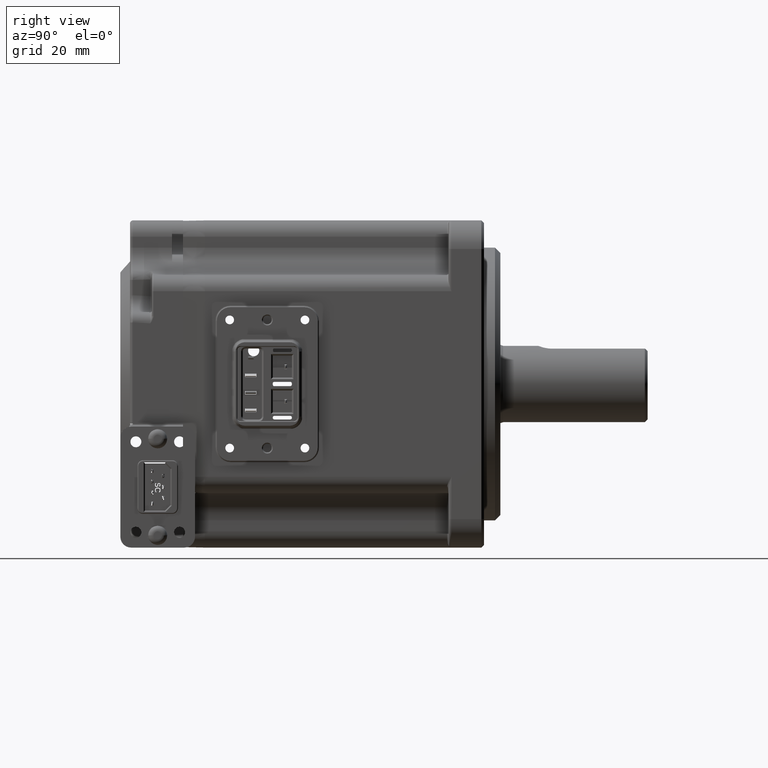
[diagram: clean part render]
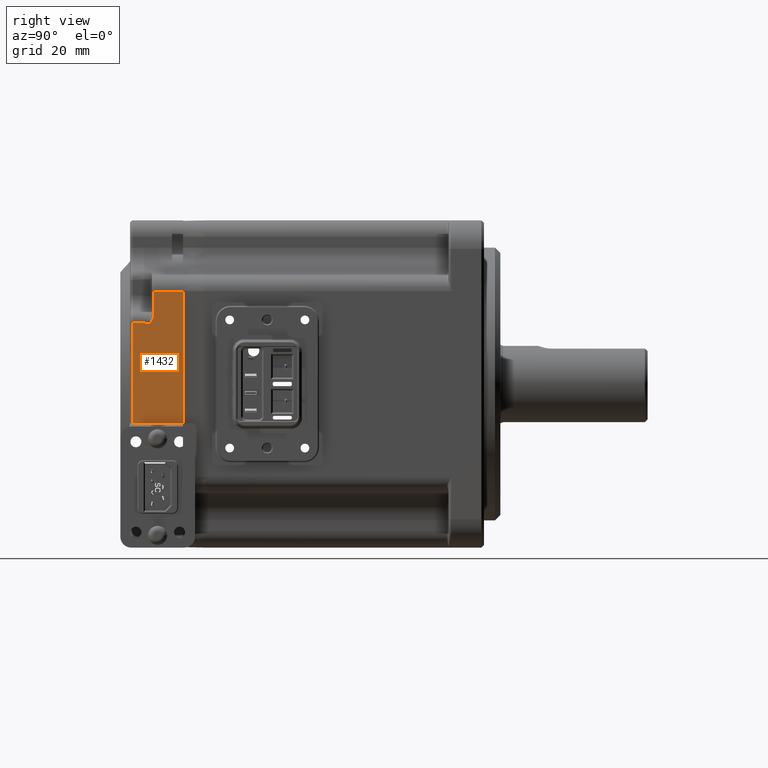
[diagram: same view with one face highlighted and labeled with its STEP entity id]
A machine part, right view. The second image highlights one B-rep face of the part: STEP entity #1432.
In plain terms, the highlighted planar face has unit normal (-1, -0, 0).
Its self-contained STEP definition (entity closure, byte-faithful):
#299 = VERTEX_POINT ( 'NONE', #12474 ) ;
#384 = DIRECTION ( 'NONE',  ( -6.076376333538275761E-17, 1.000000000000000000, 1.421175234054173029E-18 ) ) ;
#698 = VERTEX_POINT ( 'NONE', #24573 ) ;
#1412 = ORIENTED_EDGE ( 'NONE', *, *, #11119, .T. ) ;
#1432 = ADVANCED_FACE ( 'NONE', ( #11999 ), #7326, .F. ) ;
#1438 = ORIENTED_EDGE ( 'NONE', *, *, #13786, .T. ) ;
#2480 = AXIS2_PLACEMENT_3D ( 'NONE', #14401, #24902, #27167 ) ;
#3195 = EDGE_CURVE ( 'NONE', #11080, #6981, #21446, .T. ) ;
#3363 = CARTESIAN_POINT ( 'NONE',  ( 29.99999999999999645, -48.60000000000000142, 11.09725530800414006 ) ) ;
#5214 = LINE ( 'NONE', #3363, #24290 ) ;
#5370 = EDGE_CURVE ( 'NONE', #21051, #7434, #27860, .T. ) ;
#5396 = DIRECTION ( 'NONE',  ( -4.783499985006044577E-16, 1.421175234054143947E-18, -1.000000000000000000 ) ) ;
#5777 = LINE ( 'NONE', #12561, #17770 ) ;
#6046 = CARTESIAN_POINT ( 'NONE',  ( 30.00000000000000000, -43.20000000000000284, 17.00000000000000355 ) ) ;
#6759 = CARTESIAN_POINT ( 'NONE',  ( 30.00000000000000000, -49.05750410242135473, 11.35328110264268098 ) ) ;
#6981 = VERTEX_POINT ( 'NONE', #11385 ) ;
#7309 = DIRECTION ( 'NONE',  ( 8.571539329989025976E-17, -0.9986295347545739443, 0.05233595624294395260 ) ) ;
#7326 = PLANE ( 'NONE',  #2480 ) ;
#7434 = VERTEX_POINT ( 'NONE', #25080 ) ;
#7507 = LINE ( 'NONE', #16136, #27885 ) ;
#7533 = ORIENTED_EDGE ( 'NONE', *, *, #15982, .T. ) ;
#8291 = CARTESIAN_POINT ( 'NONE',  ( 29.99999999999998579, -52.40000000000000568, -7.300000000000006040 ) ) ;
#9458 = B_SPLINE_CURVE_WITH_KNOTS ( 'NONE', 3,
 ( #26023, #21768, #11005, #26169, #6759, #24739 ),
 .UNSPECIFIED., .F., .F.,
 ( 4, 2, 4 ),
 ( 0.000000000000000000, 0.0008381273812045304328, 0.001676254762409060866 ),
 .UNSPECIFIED. ) ;
#9504 = VECTOR ( 'NONE', #384, 1000.000000000000000 ) ;
#9642 = ORIENTED_EDGE ( 'NONE', *, *, #19242, .F. ) ;
#10555 = DIRECTION ( 'NONE',  ( 6.076376333538275761E-17, -1.000000000000000000, -1.421175234054173029E-18 ) ) ;
#11005 = CARTESIAN_POINT ( 'NONE',  ( 30.00000000000000000, -48.68569527096322958, 12.10888071399883437 ) ) ;
#11080 = VERTEX_POINT ( 'NONE', #6046 ) ;
#11119 = EDGE_CURVE ( 'NONE', #299, #21051, #5777, .T. ) ;
#11385 = CARTESIAN_POINT ( 'NONE',  ( 30.00000000000000000, -48.60000000000000142, 17.00000000000000355 ) ) ;
#11999 = FACE_OUTER_BOUND ( 'NONE', #26873, .T. ) ;
#12474 = CARTESIAN_POINT ( 'NONE',  ( 29.99999999999999645, -52.40000000000000568, 11.28068253549478328 ) ) ;
#12561 = CARTESIAN_POINT ( 'NONE',  ( 29.99999999999998579, -52.40000000000000568, -7.308012841124582160 ) ) ;
#13786 = EDGE_CURVE ( 'NONE', #27452, #299, #18213, .T. ) ;
#14401 = CARTESIAN_POINT ( 'NONE',  ( 30.00000000000000000, -43.20000000000000284, 20.00000000000000355 ) ) ;
#15982 = EDGE_CURVE ( 'NONE', #698, #27452, #9458, .T. ) ;
#16136 = CARTESIAN_POINT ( 'NONE',  ( 30.00000000000000000, -43.20000000000000284, 20.00000000000000355 ) ) ;
#16729 = ORIENTED_EDGE ( 'NONE', *, *, #19532, .T. ) ;
#17770 = VECTOR ( 'NONE', #21199, 1000.000000000000000 ) ;
#18213 = LINE ( 'NONE', #22332, #24675 ) ;
#18539 = ORIENTED_EDGE ( 'NONE', *, *, #5370, .T. ) ;
#18763 = CARTESIAN_POINT ( 'NONE',  ( 30.00000000000000000, -43.20000000000000284, 17.00000000000000355 ) ) ;
#19086 = CARTESIAN_POINT ( 'NONE',  ( 29.99999999999999645, -49.20000000000000284, 11.11297764178905290 ) ) ;
#19201 = ORIENTED_EDGE ( 'NONE', *, *, #3195, .T. ) ;
#19242 = EDGE_CURVE ( 'NONE', #11080, #7434, #7507, .T. ) ;
#19532 = EDGE_CURVE ( 'NONE', #6981, #698, #5214, .T. ) ;
#19766 = CARTESIAN_POINT ( 'NONE',  ( 29.99999999999998579, -43.20000000000000284, -7.300000000000006040 ) ) ;
#21051 = VERTEX_POINT ( 'NONE', #8291 ) ;
#21199 = DIRECTION ( 'NONE',  ( -4.783499985006044577E-16, 1.421175234054143947E-18, -1.000000000000000000 ) ) ;
#21446 = LINE ( 'NONE', #18763, #27943 ) ;
#21768 = CARTESIAN_POINT ( 'NONE',  ( 29.99999999999999289, -48.60000000000000142, 12.38107499224699559 ) ) ;
#22332 = CARTESIAN_POINT ( 'NONE',  ( 29.99999999999999645, -43.68090770895971531, 10.82373427115747866 ) ) ;
#24290 = VECTOR ( 'NONE', #27024, 1000.000000000000000 ) ;
#24573 = CARTESIAN_POINT ( 'NONE',  ( 29.99999999999999645, -48.60000000000000142, 12.66429700955009352 ) ) ;
#24675 = VECTOR ( 'NONE', #7309, 1000.000000000000114 ) ;
#24739 = CARTESIAN_POINT ( 'NONE',  ( 29.99999999999999645, -49.20000000000000284, 11.11297764178905290 ) ) ;
#24902 = DIRECTION ( 'NONE',  ( -1.000000000000000000, -6.076376333538275761E-17, 4.783499985006044577E-16 ) ) ;
#25080 = CARTESIAN_POINT ( 'NONE',  ( 29.99999999999998579, -43.20000000000000284, -7.300000000000007816 ) ) ;
#26023 = CARTESIAN_POINT ( 'NONE',  ( 29.99999999999999645, -48.60000000000000142, 12.66429700955009352 ) ) ;
#26169 = CARTESIAN_POINT ( 'NONE',  ( 29.99999999999998934, -48.91263378598748091, 11.59687428746527615 ) ) ;
#26873 = EDGE_LOOP ( 'NONE', ( #1438, #1412, #18539, #9642, #19201, #16729, #7533 ) ) ;
#27024 = DIRECTION ( 'NONE',  ( -4.783499985006044577E-16, 1.421175234054143947E-18, -1.000000000000000000 ) ) ;
#27167 = DIRECTION ( 'NONE',  ( 4.783499985006044577E-16, -1.421175234054143947E-18, 1.000000000000000000 ) ) ;
#27452 = VERTEX_POINT ( 'NONE', #19086 ) ;
#27860 = LINE ( 'NONE', #19766, #9504 ) ;
#27885 = VECTOR ( 'NONE', #5396, 1000.000000000000000 ) ;
#27943 = VECTOR ( 'NONE', #10555, 1000.000000000000000 ) ;